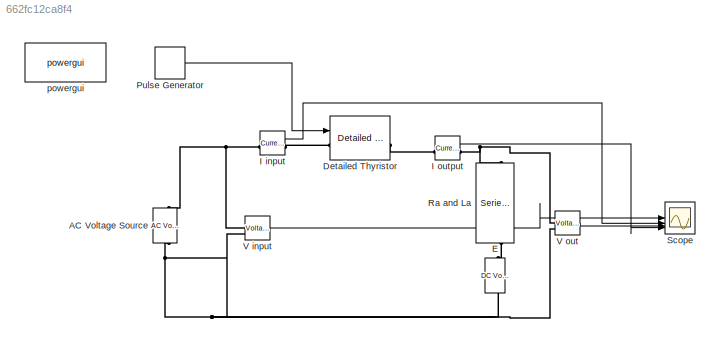
MODEL slx_662fc12ca8f4
KIND model
CONFIG AbsTol = auto
CONFIG EnableMultiTasking = off
CONFIG FixedStep = auto
CONFIG MaxStep = auto
CONFIG MinStep = auto
CONFIG RelTol = 1e-3
CONFIG SampleTimeConstraint = Unconstrained
CONFIG SolverName = VariableStepAuto
CONFIG StartTime = 0.0
CONFIG StopTime = 0.1
BLOCK [Reference] AC Voltage Source  REF=spsACVoltageSourceLib/AC Voltage Source
  LibrarySourceBlock = sps_lib/Sources/AC Voltage Source
  NameLocation = left
  SourceBlock = spsACVoltageSourceLib/AC Voltage Source
  SourceType = AC Voltage Source
BLOCK [Reference] Detailed Thyristor  REF=spsDetailedThyristorLib/Detailed Thyristor
  LibrarySourceBlock = sps_lib/Power Electronics/Detailed Thyristor
  SourceBlock = spsDetailedThyristorLib/Detailed Thyristor
  SourceType = Detailed Thyristor
BLOCK [Reference] E  REF=spsDCVoltageSourceLib/DC Voltage Source
  LibrarySourceBlock = sps_lib/Sources/DC Voltage Source
  NameLocation = left
  SourceBlock = spsDCVoltageSourceLib/DC Voltage Source
  SourceType = DC Voltage Source
BLOCK [Reference] I input  REF=spsCurrentMeasurementLib/Current Measurement
  LibrarySourceBlock = sps_lib/Sensors and Measurements/Current Measurement
  SourceBlock = spsCurrentMeasurementLib/Current Measurement
  SourceType = Current Measurement
  UserDataPersistent = on
BLOCK [Reference] I output  REF=spsCurrentMeasurementLib/Current Measurement
  LibrarySourceBlock = sps_lib/Sensors and Measurements/Current Measurement
  SourceBlock = spsCurrentMeasurementLib/Current Measurement
  SourceType = Current Measurement
  UserDataPersistent = on
BLOCK [DiscretePulseGenerator] Pulse Generator
  Period = 0.02
  PhaseDelay = 0.0033
  PulseType = Time based
  PulseWidth = 10
BLOCK [Reference] Ra and La  REF=spsSeriesRLCBranchLib/Series RLC Branch
  LibrarySourceBlock = sps_lib/Passives/Series RLC Branch
  NameLocation = left
  SourceBlock = spsSeriesRLCBranchLib/Series RLC Branch
  SourceType = Series RLC Branch
BLOCK [Scope] Scope
  ActiveDisplayString = 4
  ActiveDisplayYMaximum = 1.413423975313961
  ActiveDisplayYMinimum = -0.20304154557997986
  Floating = off
  GraphicalSettings = {"Style":{"BackgroundColor":[0.12941176470588237,0.12941176470588237,0.12941176470588237],"AxesColor":[0.07058823529411765,0.07058823529411765,0.07058823529411765],"LabelsColor":[0.8509803921568627,0.8509803921568627,0.8509803921568627],"PreserveColors":false,"Visible":[true,true,true,true],"LineStyle":["-","-","-","-"],"LineWidth":[1.5,1.5,2,1.5],"BarWidth":[0.9,0.9,0.9,0.9],"LineColor":[[1,0,0],...<+3188ch>
  LayoutDimensionsString = [4,1]
  MultipleDisplayCache = [{"MaxYLimMag":287.36302209688432,"MaxYLimReal":287.36302209688432,"MinYLimMag":0,"MinYLimReal":-286.45466197771543,"PlotAsMagnitudePhase":false,"ShowGrid":true,"ShowLegend":true,"Title":"%<SignalLabel>","YLabel":""},{"MaxYLimMag":1.413423975313961,"MaxYLimReal":1.413423975313961,"MinYLimMag":0,"MinYLimReal":-0.20304154557997986,"PlotAsMagnitudePhase":false,"ShowGrid":true,"ShowLegend":true,"Title...<+477ch>
  NumInputPorts = 4
  ScopeFrameLocation = window
  ShowLegend = on
  WasSavedAsWebScope = on
  WindowPosition = [1.000000,49.000000,1536.000000,793.000000,]
BLOCK [Reference] V input  REF=spsVoltageMeasurementLib/Voltage Measurement
  LibrarySourceBlock = sps_lib/Sensors and Measurements/Voltage Measurement
  SourceBlock = spsVoltageMeasurementLib/Voltage Measurement
  SourceType = Voltage Measurement
  UserDataPersistent = on
BLOCK [Reference] V out  REF=spsVoltageMeasurementLib/Voltage Measurement
  LibrarySourceBlock = sps_lib/Sensors and Measurements/Voltage Measurement
  SourceBlock = spsVoltageMeasurementLib/Voltage Measurement
  SourceType = Voltage Measurement
  UserDataPersistent = on
BLOCK [Reference] powergui  REF=sps_lib/powergui
  LibrarySourceBlock = sps_lib/powergui
  Priority = 1
  SourceBlock = sps_lib/powergui
  SourceType = PSB option menu block
LINE I input:1 -> Scope:2
LINE I output:1 -> Scope:4
LINE Pulse Generator:1 -> Detailed Thyristor:1
LINE V input:1 -> Scope:1
LINE V out:1 -> Scope:3
PNET net1: AC Voltage Source:LConn1 -- E:LConn1 -- V input:LConn2 -- V out:LConn2
PNET net2: AC Voltage Source:RConn1 -- I input:LConn1 -- V input:LConn1
PLINE Detailed Thyristor:LConn1 -- I input:RConn1
PLINE Detailed Thyristor:RConn1 -- I output:LConn1
PLINE E:RConn1 -- Ra and La:RConn1
PNET net3: I output:RConn1 -- Ra and La:LConn1 -- V out:LConn1
note: PNET lines group multi-terminal physical nets as a canonical sorted terminal list (undirected conserving connections); 2-terminal nets keep the pairwise PLINE form
